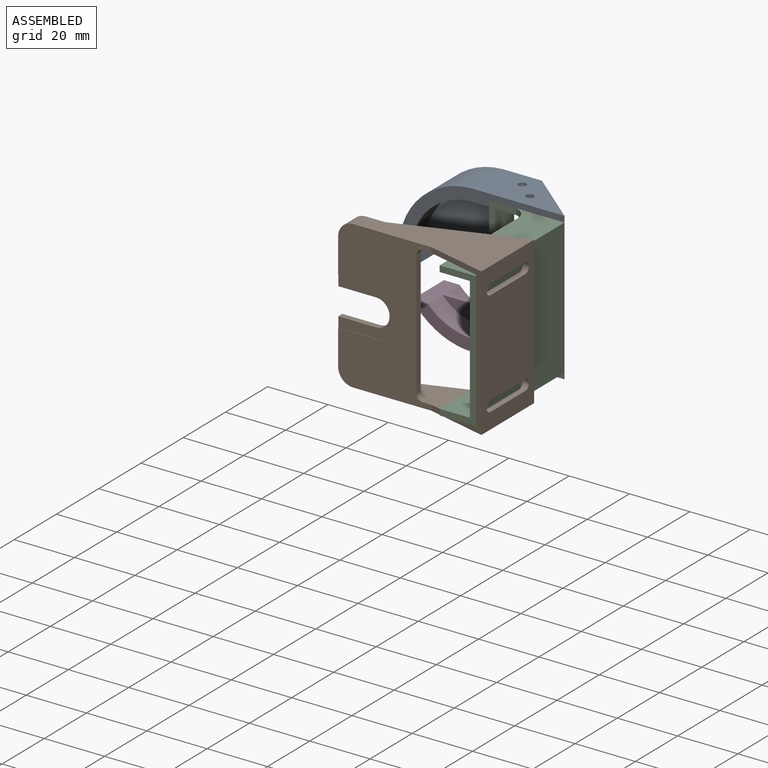
[diagram: assembled view]
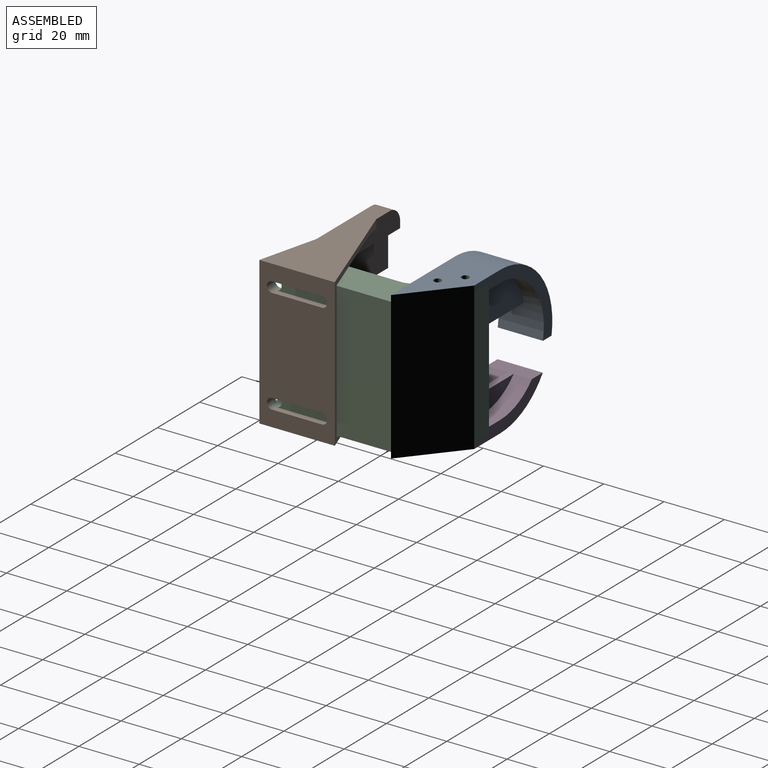
[diagram: assembled view, second angle]
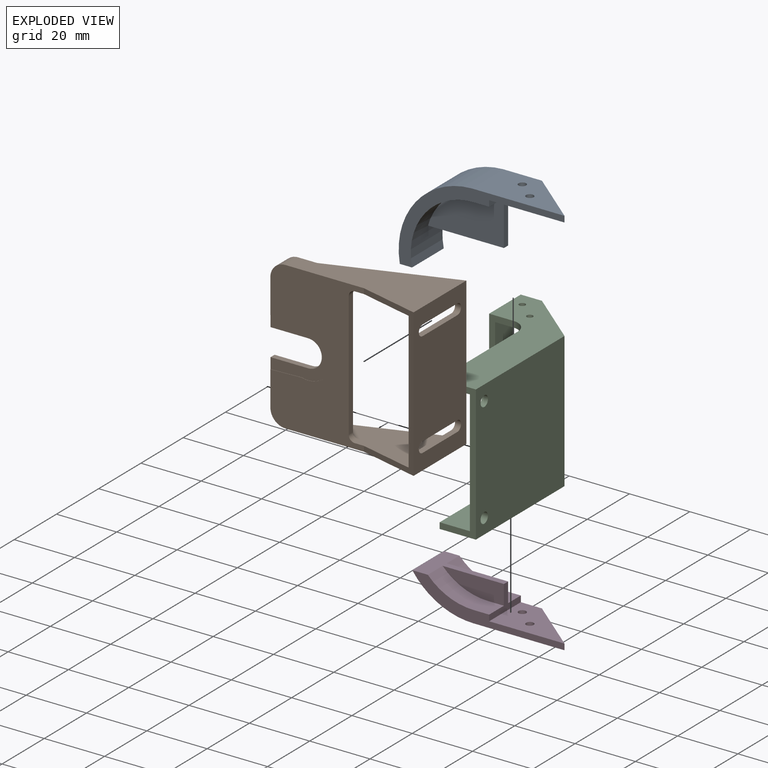
[diagram: exploded view]
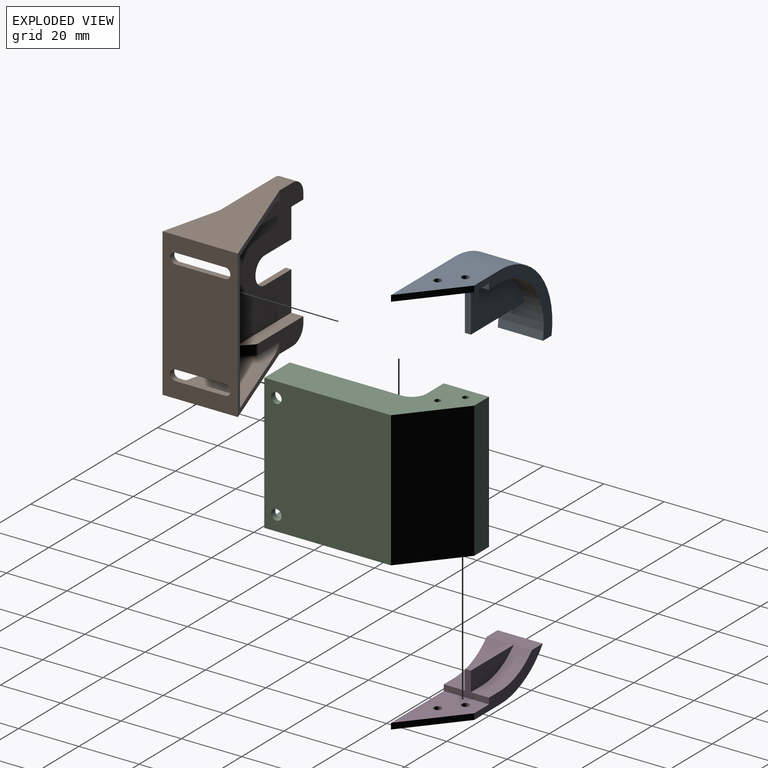
[diagram: exploded view, second angle]
ASSEMBLY  parts=4 mates=5
PART A: 17 faces, bbox 55x29x15 mm
  f0: cylinder r=20.75mm len=25.01mm, axis (0,0,-1), area 508.1mm2, adj f2,f3,f6,f7,f9,f10,f11,f12
  f1: cylinder r=24.75mm len=29mm, axis (0,0,-1), area 639.2mm2, adj f2,f3,f5,f16
  f2: plane 55x29mm, normal (0,0,1), area 231.1mm2, adj f0,f1,f4,f5,f7,f8,f13,f16
  f3: plane 37x29mm, normal (0,0,-1), area 195.1mm2, adj f0,f1,f4,f5,f6,f8,f13,f16
  f4: plane 25x15mm, normal (0,-1,0), area 230.2mm2, adj f2,f3,f8,f13,f14,f15
  f5: plane 30.79x15mm, normal (0,1,0), area 317mm2, adj f1,f2,f3,f13,f14,f15
  f6: plane 6x4.75mm, normal (0,-1,0), area 28.5mm2, adj f0,f3,f8,f10
  f7: plane 7x4.75mm, normal (0,-1,0), area 33.2mm2, adj f0,f2,f8,f9
  f8: plane 17x15mm, normal (1,0,0), area 60mm2, adj f2,f3,f4,f6,f7,f9,f10,f12
  f9: plane 25.19x15mm, normal (0,0,1), area 299.2mm2, adj f0,f7,f8,f11,f12
  f10: plane 25.19x15mm, normal (0,0,-1), area 299.2mm2, adj f0,f6,f8,f11,f12
  f11: plane 2x0.99mm, normal (0,1,0), area 2mm2, adj f0,f9,f10
  f12: plane 25.19x2mm, normal (0,-1,0), area 50.4mm2, adj f0,f8,f9,f10
  f13: plane 18x15mm, normal (0.64,0,-0.77), area 46.9mm2, adj f2,f3,f4,f5
  f14: cylinder r=1.25mm len=2.5mm, axis (0,-1,0), area 15.7mm2, adj f4,f5
  f15: cylinder r=1.25mm len=2.5mm, axis (0,-1,0), area 15.7mm2, adj f4,f5
  f16: plane 15x4.07mm, normal (0,-1,0), area 61.1mm2, adj f0,f1,f2,f3
PART B: 46 faces, bbox 51x25x49 mm
  f0: plane 35x26mm, normal (0,-1,0), area 765.7mm2, adj f1,f2,f3,f5,f8,f9,f29,f31
  f1: plane 12.5x1.9mm, normal (0,0,-1), area 23.7mm2, adj f0,f2,f8,f27
  f2: cylinder r=4.5mm len=9mm, axis (0,1,0), area 26.9mm2, adj f0,f1,f3,f27
  f3: plane 12.5x1.9mm, normal (0,0,1), area 23.7mm2, adj f0,f2,f9,f27
  f4: plane 49x31mm, normal (0,1,0), area 980.5mm2, adj f5,f7,f8,f9,f11,f12,f14,f15
  f5: plane 41.5x2mm, normal (1,0,0), area 83mm2, adj f0,f4,f32,f33,f36,f42
  f6: plane 49x39.67mm, normal (-0.33,-0.94,0), area 248.9mm2, adj f10,f11,f12,f13,f14,f15,f28,f30
  f7: plane 49x20mm, normal (-0.24,0.97,0), area 166mm2, adj f4,f10,f11,f12,f13,f14,f15
  f8: plane 15x6mm, normal (-1,0,0), area 37.6mm2, adj f0,f1,f4,f24,f27,f28,f29,f45
  f9: plane 15x6mm, normal (-1,0,0), area 37.6mm2, adj f0,f3,f4,f26,f27,f30,f31,f44
  f10: plane 49x25mm, normal (1,0,0), area 1090.3mm2, adj f6,f7,f11,f12,f16,f17,f18,f19
  f11: plane 46x25mm, normal (0,0,1), area 603.7mm2, adj f4,f6,f7,f10,f28,f45
  f12: plane 46x25mm, normal (0,0,-1), area 603.7mm2, adj f4,f6,f7,f10,f30,f44
  f13: plane 45.5x23.79mm, normal (-1,0,0), area 947.9mm2, adj f6,f7,f14,f15,f16,f17,f18,f19
  f14: plane 32x23.79mm, normal (0,0,1), area 402.9mm2, adj f4,f6,f7,f13,f34,f36,f37,f38
  f15: plane 32x23.79mm, normal (0,0,-1), area 402.9mm2, adj f4,f6,f7,f13,f40,f41,f42,f43
  f16: cylinder r=1.75mm len=3.5mm, axis (1,0,0), area 11mm2, adj f10,f13,f17,f18
  f17: plane 16.5x2mm, normal (0,0,1), area 33mm2, adj f10,f13,f16,f19
  f18: plane 16.5x2mm, normal (0,0,-1), area 33mm2, adj f10,f13,f16,f19
  f19: cylinder r=1.75mm len=3.5mm, axis (1,0,0), area 11mm2, adj f10,f13,f17,f18
  f20: plane 16.5x2mm, normal (0,0,-1), area 33mm2, adj f10,f13,f21,f22
  f21: cylinder r=1.75mm len=3.5mm, axis (1,0,0), area 11mm2, adj f10,f13,f20,f23
  f22: cylinder r=1.75mm len=3.5mm, axis (1,0,0), area 11mm2, adj f10,f13,f20,f23
  f23: plane 16.5x2mm, normal (0,0,1), area 33mm2, adj f10,f13,f21,f22
  f24: plane 10.32x0.3mm, normal (-0.03,0,-1), area 1mm2, adj f4,f8,f25,f27
  f25: cylinder r=8.1mm len=16.2mm, axis (0,1,0), area 3mm2, adj f4,f24,f26,f27
  f26: plane 10.32x0.3mm, normal (-0.03,0,1), area 1mm2, adj f4,f9,f25,f27
  f27: plane 20.6x16.2mm, normal (0,1,0), area 157.7mm2, adj f1,f2,f3,f8,f9,f24,f25,f26
  f28: plane 21.17x7mm, normal (0,-1,0), area 105.9mm2, adj f6,f8,f11,f29,f39,f40,f45
  f29: plane 26x4mm, normal (0,0,-1), area 95.9mm2, adj f0,f8,f28,f32,f39
  f30: plane 21.17x7mm, normal (0,-1,0), area 105.9mm2, adj f6,f9,f12,f31,f34,f35,f44
  f31: plane 26x4mm, normal (0,0,1), area 95.9mm2, adj f0,f9,f30,f33,f35
  f32: plane 3.41x3.41mm, normal (0.71,-0.71,0), area 15.7mm2, adj f5,f29,f39,f43
  f33: plane 3.41x3.41mm, normal (0.71,-0.71,0), area 15.7mm2, adj f5,f31,f35,f38
  f34: cylinder r=2mm len=9.84mm, axis (-1,0,0), area 24.4mm2, adj f6,f14,f30,f37
  f35: cylinder r=2mm len=3.25mm, axis (0,0,1), area 5.1mm2, adj f30,f31,f33,f37
  f36: cylinder r=2mm len=2.83mm, axis (0,-1,0), area 7.2mm2, adj f4,f5,f14,f38
  f37: torus R=4mm, axis (0,0,1), area 6.7mm2, adj f14,f34,f35,f38
  f38: cylinder r=2mm len=5.41mm, axis (0.71,0.71,0), area 16.1mm2, adj f14,f33,f36,f37
  f39: cylinder r=2mm len=3.25mm, axis (0,0,1), area 5.1mm2, adj f28,f29,f32,f41
  f40: cylinder r=2mm len=9.84mm, axis (1,0,0), area 24.4mm2, adj f6,f15,f28,f41
  f41: torus R=4mm, axis (0,0,1), area 6.7mm2, adj f15,f39,f40,f43
  f42: cylinder r=2mm len=2.83mm, axis (0,1,0), area 7.2mm2, adj f4,f5,f15,f43
  f43: cylinder r=2mm len=5.41mm, axis (0.71,0.71,0), area 16.1mm2, adj f15,f32,f41,f42
  f44: cylinder r=5mm len=6mm, axis (0,-1,0), area 47.1mm2, adj f4,f9,f12,f30
  f45: cylinder r=5mm len=6mm, axis (0,1,0), area 47.1mm2, adj f4,f8,f11,f28
PART C: 32 faces, bbox 25x57x45 mm
  f0: cylinder r=5mm len=40.77mm, axis (0,0,-1), area 145.2mm2, adj f3,f6,f8,f27
  f1: plane 5x2mm, normal (0,0,-1), area 10mm2, adj f6,f9,f25,f27
  f2: plane 16.42x15mm, normal (0,0,-1), area 169.5mm2, adj f5,f7,f18,f20,f23
  f3: plane 56x23mm, normal (0,0,1), area 610.7mm2, adj f0,f6,f7,f8,f9,f13,f18,f19
  f4: plane 15.37x10mm, normal (0,0,-1), area 153.7mm2, adj f5,f7,f13,f22
  f5: plane 37x2mm, normal (-1,0,0), area 63.8mm2, adj f2,f4,f13,f14,f20,f22,f23,f24
  f6: plane 41x5.12mm, normal (0,1,0), area 209.7mm2, adj f0,f1,f3,f9,f27
  f7: plane 42x42mm, normal (-1,0,0), area 1713mm2, adj f2,f3,f4,f8,f13,f16,f17,f18
  f8: plane 40x14.59mm, normal (-0.66,0.75,0), area 671.7mm2, adj f0,f3,f7,f27
  f9: plane 45x15mm, normal (-1,0,0), area 470mm2, adj f1,f3,f6,f10,f14,f15,f18,f25
  f10: plane 45x7mm, normal (0,-1,0), area 315mm2, adj f9,f11,f14,f15
  f11: plane 45x18mm, normal (0.64,-0.77,0), area 1054.4mm2, adj f10,f12,f14,f15
  f12: plane 45x42mm, normal (1,0,0), area 1870.8mm2, adj f11,f13,f14,f15,f16,f17
  f13: plane 45x12mm, normal (0,1,0), area 130mm2, adj f3,f4,f5,f7,f12,f14,f15,f19
  f14: plane 57x25mm, normal (0,0,1), area 743.1mm2, adj f5,f9,f10,f11,f12,f13,f18,f20
  f15: plane 57x25mm, normal (0,0,-1), area 743.1mm2, adj f9,f10,f11,f12,f13,f18,f19,f21
  f16: cylinder r=1.75mm len=3.5mm, axis (-1,0,0), area 22mm2, adj f7,f12
  f17: cylinder r=1.75mm len=3.5mm, axis (-1,0,0), area 22mm2, adj f7,f12
  f18: plane 45x23mm, normal (0,1,0), area 208.6mm2, adj f2,f3,f7,f9,f14,f15,f20,f21
  f19: plane 37x2mm, normal (-1,0,0), area 74mm2, adj f3,f13,f15,f21
  f20: cylinder r=5mm len=5mm, axis (0,0,-1), area 15.7mm2, adj f2,f5,f14,f18
  f21: cylinder r=5mm len=5mm, axis (0,0,1), area 15.7mm2, adj f3,f15,f18,f19
  f22: plane 10x1mm, normal (0,-1,0), area 10mm2, adj f4,f5,f7,f24
  f23: plane 10x1mm, normal (0,1,0), area 10mm2, adj f2,f5,f7,f24
  f24: plane 10.22x10mm, normal (0,0,-1), area 102.2mm2, adj f5,f7,f22,f23
  f25: plane 41x2mm, normal (0,-1,0), area 82mm2, adj f1,f3,f9,f26
  f26: plane 41x9mm, normal (1,0,0), area 369mm2, adj f3,f18,f25,f27
  f27: cylinder r=21mm len=21mm, axis (0,1,0), area 202.3mm2, adj f0,f1,f6,f8,f18,f26,f28,f29
  f28: cylinder r=1mm len=2.22mm, axis (0,0,-1), area 13.2mm2, adj f14,f27
  f29: cylinder r=1mm len=4.03mm, axis (0,0,-1), area 22.6mm2, adj f14,f27
  f30: cylinder r=1mm len=2mm, axis (0,0,-1), area 12.6mm2, adj f3,f15
  f31: cylinder r=1mm len=2mm, axis (0,0,-1), area 12.6mm2, adj f3,f15
PART D: 16 faces, bbox 50.5x10.5x15 mm
  f0: cylinder r=1.25mm len=2.5mm, axis (0,-1,0), area 15.7mm2, adj f3,f10
  f1: cylinder r=1.25mm len=2.5mm, axis (0,-1,0), area 15.7mm2, adj f3,f10
  f2: plane 18x15mm, normal (0.64,0,-0.77), area 46.9mm2, adj f3,f10,f14,f15
  f3: plane 25x15mm, normal (0,1,0), area 230.2mm2, adj f0,f1,f2,f5,f14,f15
  f4: plane 6x5.25mm, normal (0,1,0), area 31.5mm2, adj f5,f6,f12,f14
  f5: plane 15x8.5mm, normal (1,0,0), area 43mm2, adj f3,f4,f6,f7,f8,f9,f14,f15
  f6: plane 20.33x6.5mm, normal (0,0,-1), area 101.8mm2, adj f4,f5,f8,f12
  f7: plane 7x5.25mm, normal (0,1,0), area 36.7mm2, adj f5,f9,f11,f15
  f8: plane 25.48x15mm, normal (0,1,0), area 118mm2, adj f5,f6,f9,f11,f12,f13,f14,f15
  f9: plane 20.33x6.5mm, normal (0,0,1), area 101.8mm2, adj f5,f7,f8,f11
  f10: plane 30.25x15mm, normal (0,-1,0), area 308.9mm2, adj f0,f1,f2,f13,f14,f15
  f11: cylinder r=20.75mm len=15.08mm, axis (0,0,-1), area 118.2mm2, adj f7,f8,f9,f15
  f12: cylinder r=20.75mm len=15.08mm, axis (0,0,-1), area 101.3mm2, adj f4,f6,f8,f14
  f13: cylinder r=24.75mm len=20.24mm, axis (0,0,-1), area 355.4mm2, adj f8,f10,f14,f15
  f14: plane 32.49x10.5mm, normal (0,0,-1), area 116.3mm2, adj f2,f3,f4,f5,f8,f10,f12,f13
  f15: plane 50.48x10.5mm, normal (0,0,1), area 152.3mm2, adj f2,f3,f5,f7,f8,f10,f11,f13
PLACE A rot(axis=(1,0,0),90deg) t=(25,0,2)mm
PLACE B rot(axis=(-1,0,0),180deg) t=(-24,-50.25,2)mm
PLACE C rot(axis=(1,0,0),180deg) t=(13,-57,0)mm
PLACE D rot(axis=(1,0,0),90deg) t=(25,0,2.5)mm
MATE revolute D.f1 <-> C.f29  axis (0,0,1) through (10,-10,-45)mm
MATE revolute A.f15 <-> C.f28  axis (0,0,-1) through (4,-5,0)mm
MATE revolute A.f14 <-> C.f29  axis (0,0,-1) through (10,-10,0)mm
MATE revolute D.f0 <-> C.f28  axis (0,0,1) through (4,-5,-45)mm
MATE fastened C.f16 <-> B.f22  axis (1,0,0) through (25,-53,-40)mm
